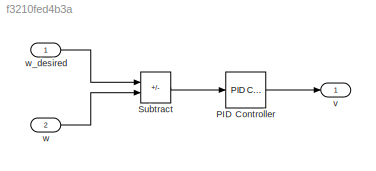
MODEL slx_f3210fed4b3a
KIND model
CONFIG AbsTol = auto
CONFIG EnableMultiTasking = on
CONFIG FixedStep = 0.001
CONFIG MaxStep = auto
CONFIG MinStep = auto
CONFIG RelTol = 1e-3
CONFIG SampleTimeConstraint = Unconstrained
CONFIG SolverName = FixedStepAuto
CONFIG StartTime = 0.0
CONFIG StopTime = 10.0
BLOCK [Reference] PID Controller  REF=slpidlib/PID Controller
  SourceBlock = slpidlib/PID Controller
  SourceType = PID 1dof
BLOCK [Sum] Subtract
  IconShape = rectangular
  Inputs = +-
BLOCK [Outport] v
  Description = Armature voltage
  Unit = V
BLOCK [Inport] w
  Description = Motor speed
  Port = 2
  Unit = rad/s
BLOCK [Inport] w_desired
  Description = Desired motor speed
  Unit = rad/s
LINE PID Controller:1 -> v:1
LINE Subtract:1 -> PID Controller:1
LINE w:1 -> Subtract:2
LINE w_desired:1 -> Subtract:1
